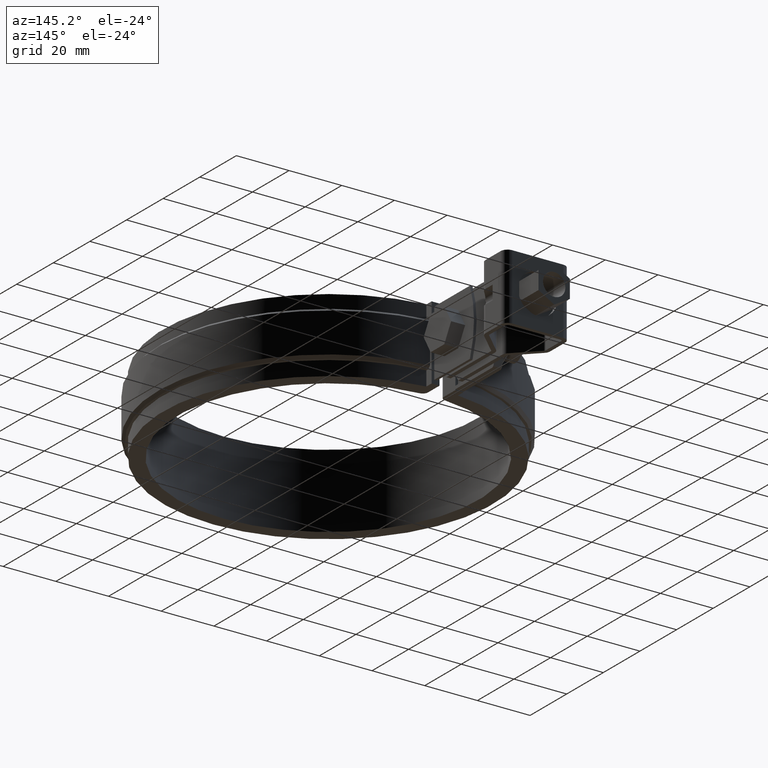
[diagram: clean part render]
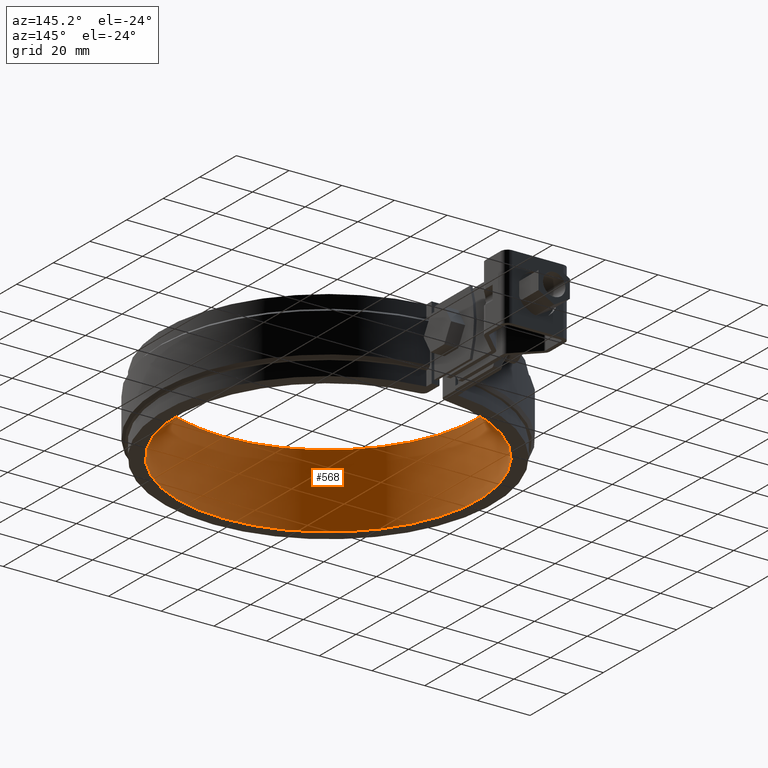
[diagram: same view with one face highlighted and labeled with its STEP entity id]
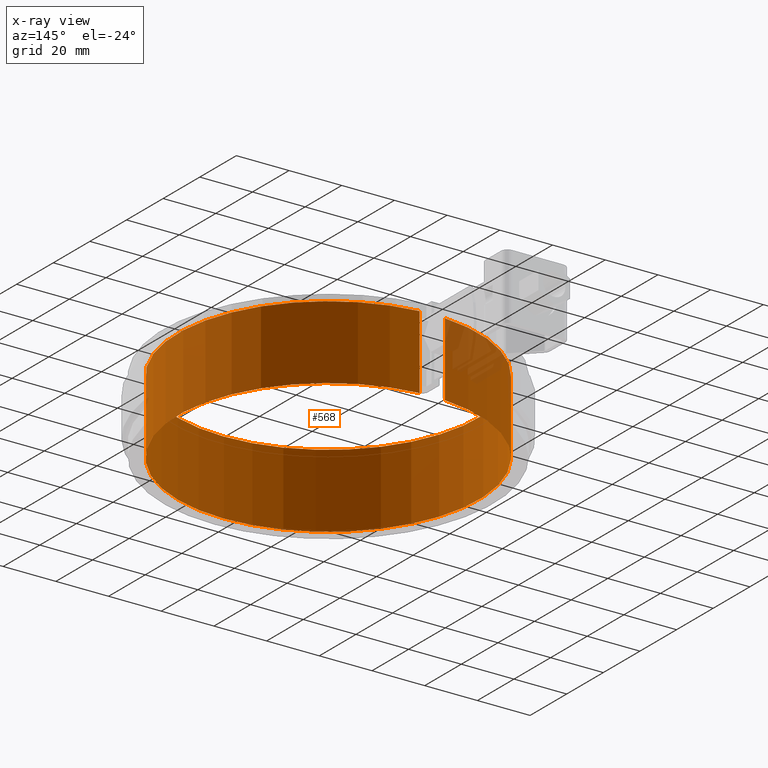
[diagram: x-ray of the same camera — body ghosted, the highlighted face saturated]
A machine part, auxiliary view. The second image highlights one B-rep face of the part: STEP entity #568.
The next image is the same camera in x-ray: the body ghosted, the highlighted face saturated — about 5% of this face is hidden behind the body in this view.
In plain terms, the highlighted cylindrical surface (partial cylindrical patch) has radius 57 mm, axis along (0, 0, -1).
Its self-contained STEP definition (entity closure, byte-faithful):
#568 = ADVANCED_FACE( '', ( #1031 ), #1032, .F. );
#1031 = FACE_OUTER_BOUND( '', #2319, .T. );
#1032 = CYLINDRICAL_SURFACE( '', #2320, 57.0000000000000 );
#2319 = EDGE_LOOP( '', ( #4791, #4792, #4793, #4794 ) );
#2320 = AXIS2_PLACEMENT_3D( '', #4795, #4796, #4797 );
#4791 = ORIENTED_EDGE( '', *, *, #7067, .F. );
#4792 = ORIENTED_EDGE( '', *, *, #6962, .F. );
#4793 = ORIENTED_EDGE( '', *, *, #7068, .T. );
#4794 = ORIENTED_EDGE( '', *, *, #7064, .T. );
#4795 = CARTESIAN_POINT( '', ( 2.60208521396521E-015, 3.46944695195361E-014, -14.0000000000000 ) );
#4796 = DIRECTION( '', ( 0.000000000000000, 0.000000000000000, -1.00000000000000 ) );
#4797 = DIRECTION( '', ( -0.0847457627118643, -0.996402607233835, 0.000000000000000 ) );
#6962 = EDGE_CURVE( '', #8087, #8083, #8089, .T. );
#7064 = EDGE_CURVE( '', #8249, #8246, #8250, .T. );
#7067 = EDGE_CURVE( '', #8083, #8246, #8254, .T. );
#7068 = EDGE_CURVE( '', #8087, #8249, #8255, .T. );
#8083 = VERTEX_POINT( '', #11803 );
#8087 = VERTEX_POINT( '', #11808 );
#8089 = LINE( '', #11810, #11811 );
#8246 = VERTEX_POINT( '', #12089 );
#8249 = VERTEX_POINT( '', #12092 );
#8250 = LINE( '', #12093, #12094 );
#8254 = CIRCLE( '', #12099, 57.0000000000000 );
#8255 = CIRCLE( '', #12100, 57.0000000000000 );
#11803 = CARTESIAN_POINT( '', ( 4.83050847457626, 56.7949486123287, 14.0000000000000 ) );
#11808 = CARTESIAN_POINT( '', ( 4.83050847457626, 56.7949486123287, -14.0000000000000 ) );
#11810 = CARTESIAN_POINT( '', ( 4.83050847457626, 56.7949486123287, -14.0000000000000 ) );
#11811 = VECTOR( '', #13878, 1000.00000000000 );
#12089 = CARTESIAN_POINT( '', ( -4.83050847457618, 56.7949486123287, 14.0000000000000 ) );
#12092 = CARTESIAN_POINT( '', ( -4.83050847457618, 56.7949486123287, -14.0000000000000 ) );
#12093 = CARTESIAN_POINT( '', ( -4.83050847457618, 56.7949486123287, -14.0000000000000 ) );
#12094 = VECTOR( '', #14020, 1000.00000000000 );
#12099 = AXIS2_PLACEMENT_3D( '', #14025, #14026, #14027 );
#12100 = AXIS2_PLACEMENT_3D( '', #14028, #14029, #14030 );
#13878 = DIRECTION( '', ( 0.000000000000000, 0.000000000000000, 1.00000000000000 ) );
#14020 = DIRECTION( '', ( 0.000000000000000, 0.000000000000000, 1.00000000000000 ) );
#14025 = CARTESIAN_POINT( '', ( 2.60208521396521E-015, 3.46944695195361E-014, 14.0000000000000 ) );
#14026 = DIRECTION( '', ( 0.000000000000000, 0.000000000000000, -1.00000000000000 ) );
#14027 = DIRECTION( '', ( 1.00000000000000, 0.000000000000000, 0.000000000000000 ) );
#14028 = CARTESIAN_POINT( '', ( 2.60208521396521E-015, 3.46944695195361E-014, -14.0000000000000 ) );
#14029 = DIRECTION( '', ( 0.000000000000000, 0.000000000000000, -1.00000000000000 ) );
#14030 = DIRECTION( '', ( 1.00000000000000, 0.000000000000000, 0.000000000000000 ) );